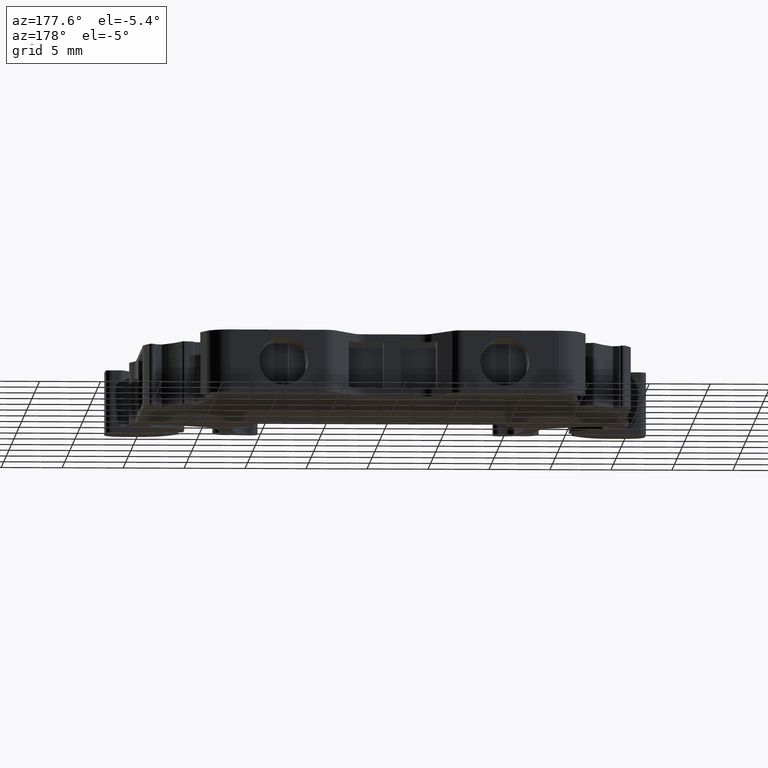
[diagram: clean part render]
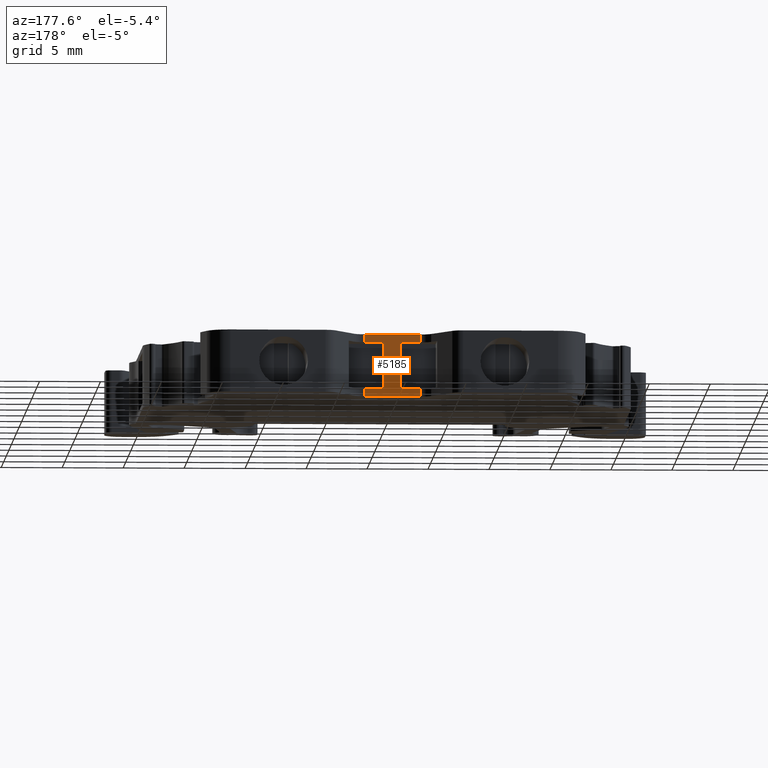
[diagram: same view with one face highlighted and labeled with its STEP entity id]
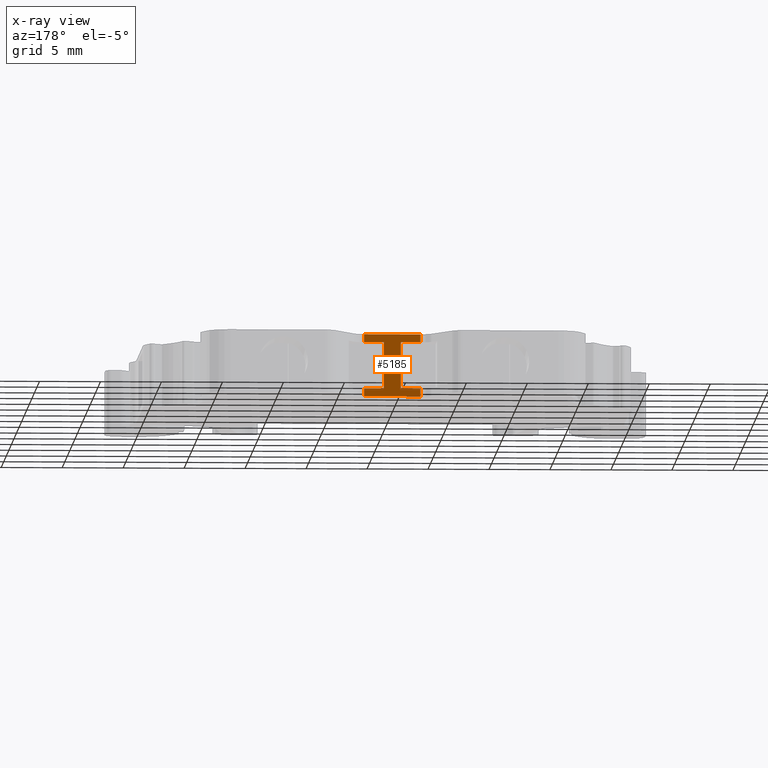
[diagram: x-ray of the same camera — body ghosted, the highlighted face saturated]
A machine part, auxiliary view. The second image highlights one B-rep face of the part: STEP entity #5185.
The next image is the same camera in x-ray: the body ghosted, the highlighted face saturated — about 0% of this face is hidden behind the body in this view.
In plain terms, the highlighted planar face has unit normal (0, 1, 0).
Its self-contained STEP definition (entity closure, byte-faithful):
#10 = DIRECTION ( 'NONE',  ( 1.000000000000000000, 0.0000000000000000000, -0.0000000000000000000 ) ) ;
#528 = CARTESIAN_POINT ( 'NONE',  ( 1449.095795856722100, 953.6846795375220200, -43.60000000000000100 ) ) ;
#571 = EDGE_CURVE ( 'NONE', #3121, #7526, #4016, .T. ) ;
#589 = VECTOR ( 'NONE', #3759, 1000.000000000000000 ) ;
#606 = ORIENTED_EDGE ( 'NONE', *, *, #6079, .F. ) ;
#683 = CARTESIAN_POINT ( 'NONE',  ( 1471.260352861904300, 953.6846795375220200, -48.05000000000000400 ) ) ;
#691 = CARTESIAN_POINT ( 'NONE',  ( 0.0000000000000000000, 953.6846795375220200, -42.94999999999999600 ) ) ;
#949 = LINE ( 'NONE', #691, #3732 ) ;
#962 = DIRECTION ( 'NONE',  ( 0.0000000000000000000, 0.0000000000000000000, 1.000000000000000000 ) ) ;
#1056 = EDGE_CURVE ( 'NONE', #1421, #4522, #7276, .T. ) ;
#1125 = CARTESIAN_POINT ( 'NONE',  ( 1457.871626077919900, 953.6846795375220200, -43.60000000000000100 ) ) ;
#1157 = ORIENTED_EDGE ( 'NONE', *, *, #7736, .F. ) ;
#1163 = CARTESIAN_POINT ( 'NONE',  ( 1459.478071211360000, 953.6846795375220200, -47.39999999999999900 ) ) ;
#1204 = EDGE_CURVE ( 'NONE', #6375, #3928, #1329, .T. ) ;
#1253 = VECTOR ( 'NONE', #3044, 1000.000000000000000 ) ;
#1329 = LINE ( 'NONE', #2942, #4646 ) ;
#1421 = VERTEX_POINT ( 'NONE', #8458 ) ;
#1474 = CARTESIAN_POINT ( 'NONE',  ( 1460.878077507266000, 953.6846795375220200, -47.39999999999999900 ) ) ;
#1614 = DIRECTION ( 'NONE',  ( 1.000000000000000000, 0.0000000000000000000, 0.0000000000000000000 ) ) ;
#2015 = CARTESIAN_POINT ( 'NONE',  ( 1457.871626077919900, 953.6846795375220200, -42.94999999999999600 ) ) ;
#2168 = ORIENTED_EDGE ( 'NONE', *, *, #8763, .T. ) ;
#2240 = CARTESIAN_POINT ( 'NONE',  ( 1462.484522640706000, 953.6846795375220200, -42.94999999999999600 ) ) ;
#2275 = VECTOR ( 'NONE', #4019, 1000.000000000000000 ) ;
#2315 = CARTESIAN_POINT ( 'NONE',  ( 1459.478071211360000, 953.6846795375220200, -48.79999999999999700 ) ) ;
#2394 = EDGE_CURVE ( 'NONE', #4522, #8718, #3311, .T. ) ;
#2618 = AXIS2_PLACEMENT_3D ( 'NONE', #8933, #3405, #4728 ) ;
#2720 = PLANE ( 'NONE',  #2618 ) ;
#2748 = ORIENTED_EDGE ( 'NONE', *, *, #5204, .T. ) ;
#2819 = LINE ( 'NONE', #8897, #3786 ) ;
#2841 = VECTOR ( 'NONE', #4525, 1000.000000000000000 ) ;
#2845 = EDGE_CURVE ( 'NONE', #6457, #4021, #6347, .T. ) ;
#2942 = CARTESIAN_POINT ( 'NONE',  ( 1449.095795856722100, 953.6846795375220200, -47.39999999999999900 ) ) ;
#3044 = DIRECTION ( 'NONE',  ( 0.0000000000000000000, 0.0000000000000000000, -1.000000000000000000 ) ) ;
#3049 = LINE ( 'NONE', #8508, #6411 ) ;
#3088 = VECTOR ( 'NONE', #10, 1000.000000000000000 ) ;
#3121 = VERTEX_POINT ( 'NONE', #1125 ) ;
#3145 = CARTESIAN_POINT ( 'NONE',  ( 1457.871626077919900, 953.6846795375220200, -48.79999999999999700 ) ) ;
#3311 = LINE ( 'NONE', #7797, #8883 ) ;
#3405 = DIRECTION ( 'NONE',  ( 0.0000000000000000000, 1.000000000000000000, 0.0000000000000000000 ) ) ;
#3627 = FACE_OUTER_BOUND ( 'NONE', #8285, .T. ) ;
#3728 = ORIENTED_EDGE ( 'NONE', *, *, #5561, .F. ) ;
#3732 = VECTOR ( 'NONE', #6315, 1000.000000000000000 ) ;
#3759 = DIRECTION ( 'NONE',  ( 0.0000000000000000000, 0.0000000000000000000, 1.000000000000000000 ) ) ;
#3786 = VECTOR ( 'NONE', #8551, 1000.000000000000000 ) ;
#3927 = ORIENTED_EDGE ( 'NONE', *, *, #1056, .F. ) ;
#3928 = VERTEX_POINT ( 'NONE', #6065 ) ;
#4016 = LINE ( 'NONE', #3145, #2841 ) ;
#4019 = DIRECTION ( 'NONE',  ( 0.0000000000000000000, 0.0000000000000000000, -1.000000000000000000 ) ) ;
#4021 = VERTEX_POINT ( 'NONE', #8073 ) ;
#4023 = VERTEX_POINT ( 'NONE', #1163 ) ;
#4409 = LINE ( 'NONE', #5254, #2275 ) ;
#4522 = VERTEX_POINT ( 'NONE', #5770 ) ;
#4525 = DIRECTION ( 'NONE',  ( 0.0000000000000000000, 0.0000000000000000000, 1.000000000000000000 ) ) ;
#4598 = DIRECTION ( 'NONE',  ( 1.000000000000000000, 0.0000000000000000000, 0.0000000000000000000 ) ) ;
#4646 = VECTOR ( 'NONE', #1614, 1000.000000000000000 ) ;
#4728 = DIRECTION ( 'NONE',  ( 0.0000000000000000000, 0.0000000000000000000, -1.000000000000000000 ) ) ;
#4785 = CARTESIAN_POINT ( 'NONE',  ( 1457.871626077919900, 953.6846795375220200, -48.05000000000000400 ) ) ;
#4792 = VECTOR ( 'NONE', #6596, 1000.000000000000000 ) ;
#5185 = ADVANCED_FACE ( 'NONE', ( #3627 ), #2720, .T. ) ;
#5204 = EDGE_CURVE ( 'NONE', #7526, #8718, #949, .T. ) ;
#5254 = CARTESIAN_POINT ( 'NONE',  ( 1462.484522640706000, 953.6846795375220200, -42.20000000000000300 ) ) ;
#5545 = LINE ( 'NONE', #2315, #589 ) ;
#5561 = EDGE_CURVE ( 'NONE', #4023, #8264, #7758, .T. ) ;
#5770 = CARTESIAN_POINT ( 'NONE',  ( 1462.484522640706000, 953.6846795375220200, -43.60000000000000100 ) ) ;
#6065 = CARTESIAN_POINT ( 'NONE',  ( 1462.484522640706000, 953.6846795375220200, -47.39999999999999900 ) ) ;
#6079 = EDGE_CURVE ( 'NONE', #8264, #6457, #8628, .T. ) ;
#6315 = DIRECTION ( 'NONE',  ( 1.000000000000000000, -0.0000000000000000000, 0.0000000000000000000 ) ) ;
#6341 = ORIENTED_EDGE ( 'NONE', *, *, #2845, .F. ) ;
#6347 = LINE ( 'NONE', #683, #3088 ) ;
#6375 = VERTEX_POINT ( 'NONE', #1474 ) ;
#6411 = VECTOR ( 'NONE', #6453, 1000.000000000000000 ) ;
#6453 = DIRECTION ( 'NONE',  ( 0.0000000000000000000, 0.0000000000000000000, 1.000000000000000000 ) ) ;
#6457 = VERTEX_POINT ( 'NONE', #4785 ) ;
#6530 = CARTESIAN_POINT ( 'NONE',  ( 1457.871626077919900, 953.6846795375220200, -47.39999999999999900 ) ) ;
#6596 = DIRECTION ( 'NONE',  ( -1.000000000000000000, 0.0000000000000000000, 0.0000000000000000000 ) ) ;
#6618 = ORIENTED_EDGE ( 'NONE', *, *, #571, .T. ) ;
#6808 = ORIENTED_EDGE ( 'NONE', *, *, #1204, .T. ) ;
#6927 = EDGE_CURVE ( 'NONE', #7419, #3121, #2819, .T. ) ;
#7113 = ORIENTED_EDGE ( 'NONE', *, *, #2394, .F. ) ;
#7150 = ORIENTED_EDGE ( 'NONE', *, *, #7266, .T. ) ;
#7181 = CARTESIAN_POINT ( 'NONE',  ( 1457.871626077919900, 953.6846795375220200, -42.20000000000000300 ) ) ;
#7266 = EDGE_CURVE ( 'NONE', #3928, #4021, #4409, .T. ) ;
#7276 = LINE ( 'NONE', #528, #7821 ) ;
#7419 = VERTEX_POINT ( 'NONE', #7643 ) ;
#7526 = VERTEX_POINT ( 'NONE', #2015 ) ;
#7643 = CARTESIAN_POINT ( 'NONE',  ( 1459.478071211360000, 953.6846795375220200, -43.60000000000000100 ) ) ;
#7736 = EDGE_CURVE ( 'NONE', #6375, #1421, #3049, .T. ) ;
#7758 = LINE ( 'NONE', #8768, #4792 ) ;
#7797 = CARTESIAN_POINT ( 'NONE',  ( 1462.484522640706000, 953.6846795375220200, -48.79999999999999700 ) ) ;
#7821 = VECTOR ( 'NONE', #4598, 1000.000000000000000 ) ;
#8061 = ORIENTED_EDGE ( 'NONE', *, *, #6927, .T. ) ;
#8073 = CARTESIAN_POINT ( 'NONE',  ( 1462.484522640706000, 953.6846795375220200, -48.05000000000000400 ) ) ;
#8264 = VERTEX_POINT ( 'NONE', #6530 ) ;
#8285 = EDGE_LOOP ( 'NONE', ( #7113, #3927, #1157, #6808, #7150, #6341, #606, #3728, #2168, #8061, #6618, #2748 ) ) ;
#8458 = CARTESIAN_POINT ( 'NONE',  ( 1460.878077507266000, 953.6846795375220200, -43.60000000000000100 ) ) ;
#8508 = CARTESIAN_POINT ( 'NONE',  ( 1460.878077507266000, 953.6846795375220200, -48.79999999999999700 ) ) ;
#8551 = DIRECTION ( 'NONE',  ( -1.000000000000000000, 0.0000000000000000000, 0.0000000000000000000 ) ) ;
#8628 = LINE ( 'NONE', #7181, #1253 ) ;
#8718 = VERTEX_POINT ( 'NONE', #2240 ) ;
#8763 = EDGE_CURVE ( 'NONE', #4023, #7419, #5545, .T. ) ;
#8768 = CARTESIAN_POINT ( 'NONE',  ( 1471.260352861904300, 953.6846795375220200, -47.39999999999999900 ) ) ;
#8883 = VECTOR ( 'NONE', #962, 1000.000000000000000 ) ;
#8897 = CARTESIAN_POINT ( 'NONE',  ( 1471.260352861904300, 953.6846795375220200, -43.60000000000000100 ) ) ;
#8933 = CARTESIAN_POINT ( 'NONE',  ( 1471.260352861904300, 953.6846795375220200, -48.79999999999999700 ) ) ;